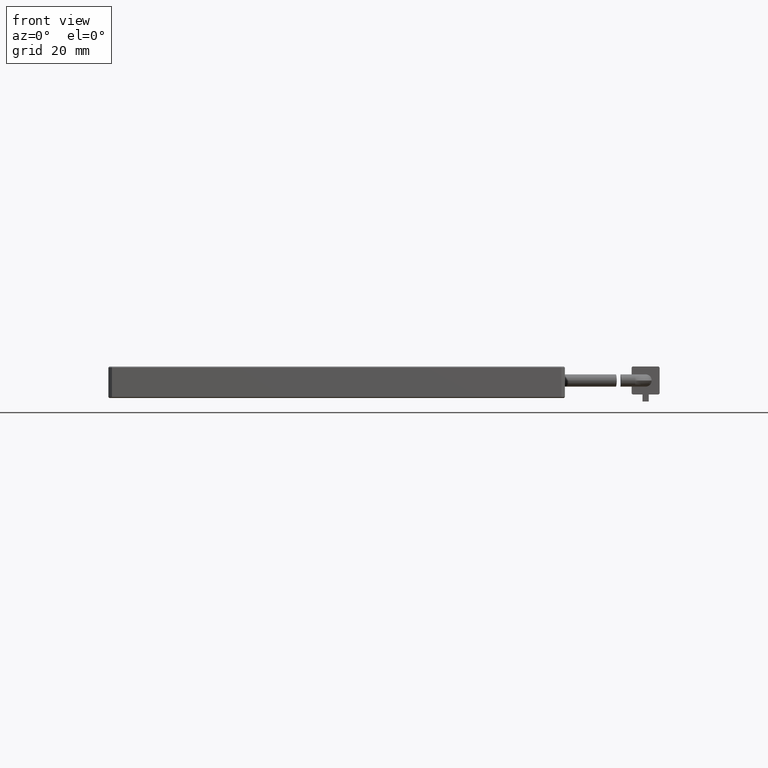
[diagram: clean part render]
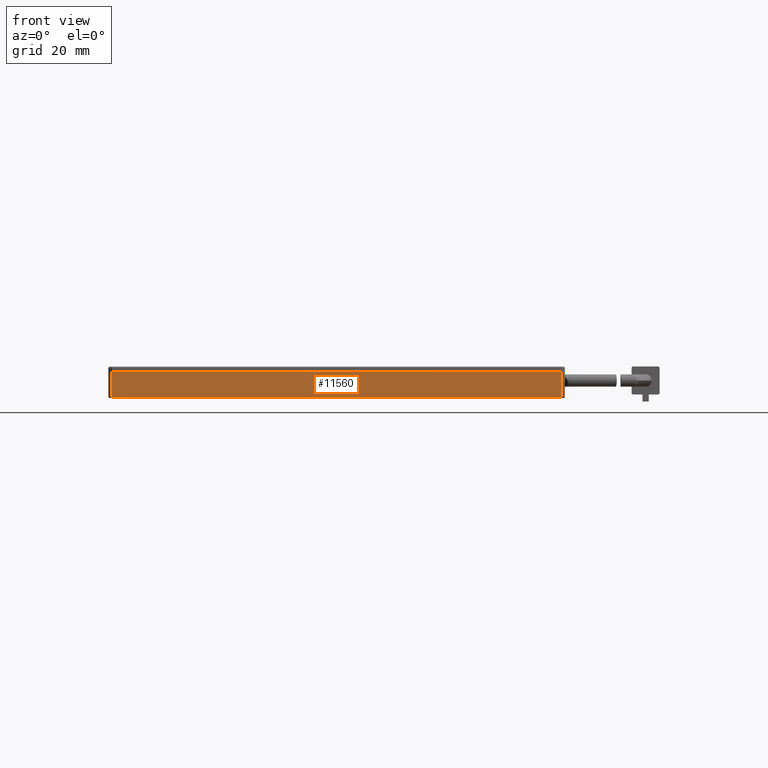
[diagram: same view with one face highlighted and labeled with its STEP entity id]
A machine part, front view. The second image highlights one B-rep face of the part: STEP entity #11560.
In plain terms, the highlighted planar face has unit normal (0, 1, 0).
Its self-contained STEP definition (entity closure, byte-faithful):
#228 = LINE ( 'NONE', #5389, #18847 ) ;
#239 = VECTOR ( 'NONE', #18181, 1000.000000000000000 ) ;
#686 = CARTESIAN_POINT ( 'NONE',  ( 90.12907407407406900, -40.94055555555554800, 4.500000000000000000 ) ) ;
#1297 = VERTEX_POINT ( 'NONE', #19635 ) ;
#1542 = VERTEX_POINT ( 'NONE', #18902 ) ;
#1659 = VERTEX_POINT ( 'NONE', #14531 ) ;
#2742 = DIRECTION ( 'NONE',  ( 0.0000000000000000000, 1.000000000000000000, 0.0000000000000000000 ) ) ;
#4685 = EDGE_CURVE ( 'NONE', #1542, #1659, #19786, .T. ) ;
#4876 = DIRECTION ( 'NONE',  ( 0.0000000000000000000, -0.0000000000000000000, 1.000000000000000000 ) ) ;
#5389 = CARTESIAN_POINT ( 'NONE',  ( -38.87092592592590300, -40.94055555555554800, 4.500000000000000000 ) ) ;
#8440 = EDGE_CURVE ( 'NONE', #19889, #1297, #228, .T. ) ;
#8942 = CARTESIAN_POINT ( 'NONE',  ( -38.87092592592590300, -40.94055555555554800, 4.500000000000000000 ) ) ;
#9127 = AXIS2_PLACEMENT_3D ( 'NONE', #8942, #2742, #19919 ) ;
#9627 = FACE_OUTER_BOUND ( 'NONE', #16983, .T. ) ;
#11560 = ADVANCED_FACE ( 'NONE', ( #9627 ), #20058, .F. ) ;
#12343 = LINE ( 'NONE', #18865, #13356 ) ;
#12694 = ORIENTED_EDGE ( 'NONE', *, *, #18702, .F. ) ;
#13097 = ORIENTED_EDGE ( 'NONE', *, *, #8440, .T. ) ;
#13189 = EDGE_CURVE ( 'NONE', #1659, #1297, #12343, .T. ) ;
#13264 = DIRECTION ( 'NONE',  ( -1.000000000000000000, 0.0000000000000000000, -0.0000000000000000000 ) ) ;
#13356 = VECTOR ( 'NONE', #4876, 1000.000000000000000 ) ;
#13800 = CARTESIAN_POINT ( 'NONE',  ( -38.87092592592590300, -40.94055555555554800, -2.699999999999977500 ) ) ;
#13938 = DIRECTION ( 'NONE',  ( -1.000000000000000000, -0.0000000000000000000, -0.0000000000000000000 ) ) ;
#14531 = CARTESIAN_POINT ( 'NONE',  ( -37.87092592592590300, -40.94055555555554800, -2.699999999999977100 ) ) ;
#15826 = VECTOR ( 'NONE', #13938, 1000.000000000000000 ) ;
#16176 = LINE ( 'NONE', #686, #239 ) ;
#16850 = CARTESIAN_POINT ( 'NONE',  ( 90.12907407407409700, -40.94055555555554800, 4.500000000000000000 ) ) ;
#16983 = EDGE_LOOP ( 'NONE', ( #17586, #12694, #13097, #20104 ) ) ;
#17586 = ORIENTED_EDGE ( 'NONE', *, *, #4685, .F. ) ;
#18181 = DIRECTION ( 'NONE',  ( -0.0000000000000000000, 0.0000000000000000000, -1.000000000000000000 ) ) ;
#18702 = EDGE_CURVE ( 'NONE', #19889, #1542, #16176, .T. ) ;
#18847 = VECTOR ( 'NONE', #13264, 1000.000000000000000 ) ;
#18865 = CARTESIAN_POINT ( 'NONE',  ( -37.87092592592590300, -40.94055555555554800, 4.500000000000000000 ) ) ;
#18902 = CARTESIAN_POINT ( 'NONE',  ( 90.12907407407409700, -40.94055555555554800, -2.699999999999980200 ) ) ;
#19635 = CARTESIAN_POINT ( 'NONE',  ( -37.87092592592590300, -40.94055555555554800, 4.500000000000000000 ) ) ;
#19786 = LINE ( 'NONE', #13800, #15826 ) ;
#19889 = VERTEX_POINT ( 'NONE', #16850 ) ;
#19919 = DIRECTION ( 'NONE',  ( 0.0000000000000000000, -0.0000000000000000000, 1.000000000000000000 ) ) ;
#20058 = PLANE ( 'NONE',  #9127 ) ;
#20104 = ORIENTED_EDGE ( 'NONE', *, *, #13189, .F. ) ;